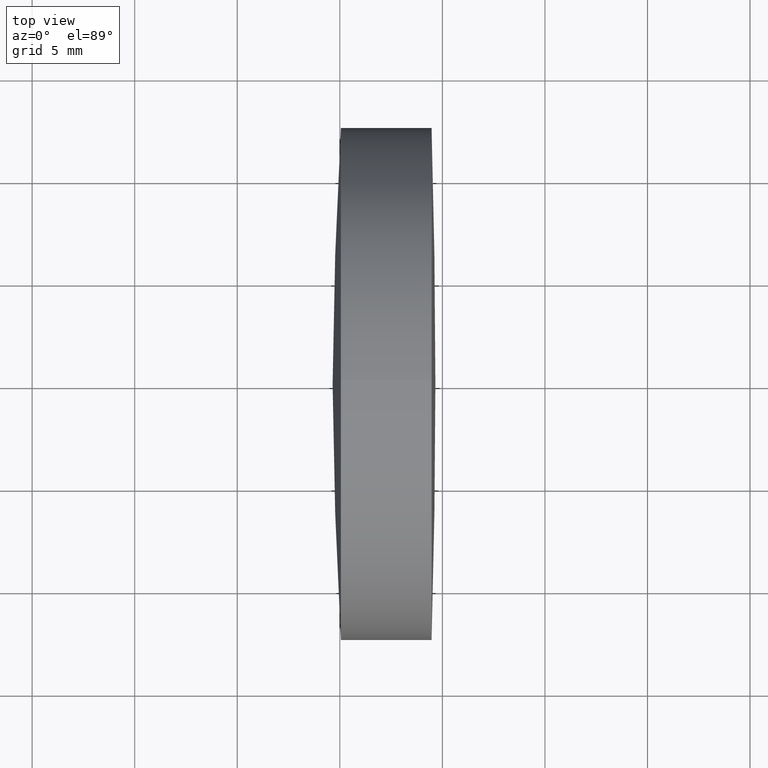
[diagram: clean part render]
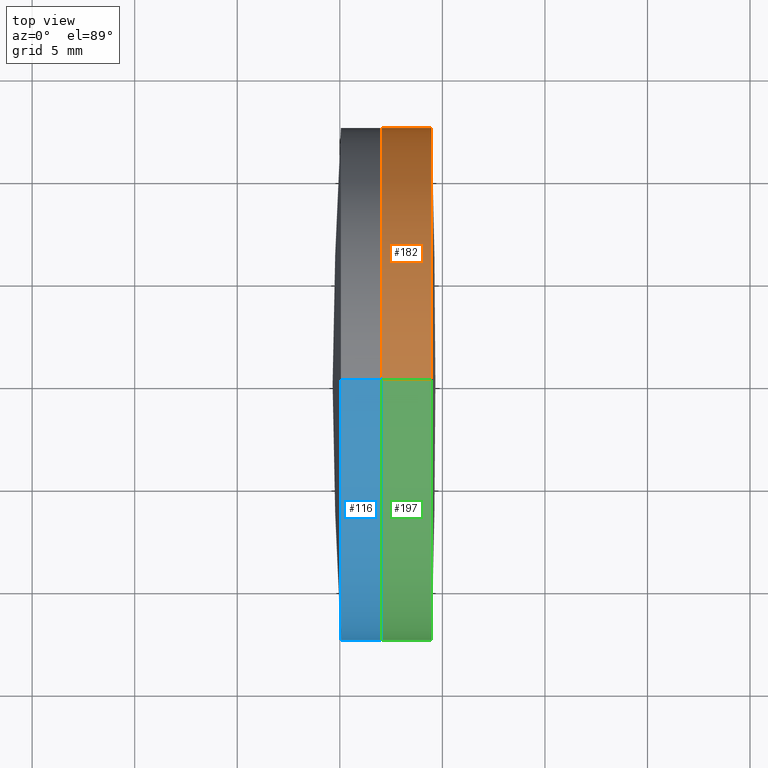
[diagram: same view with three faces highlighted in distinct colors, each labeled with its STEP entity id]
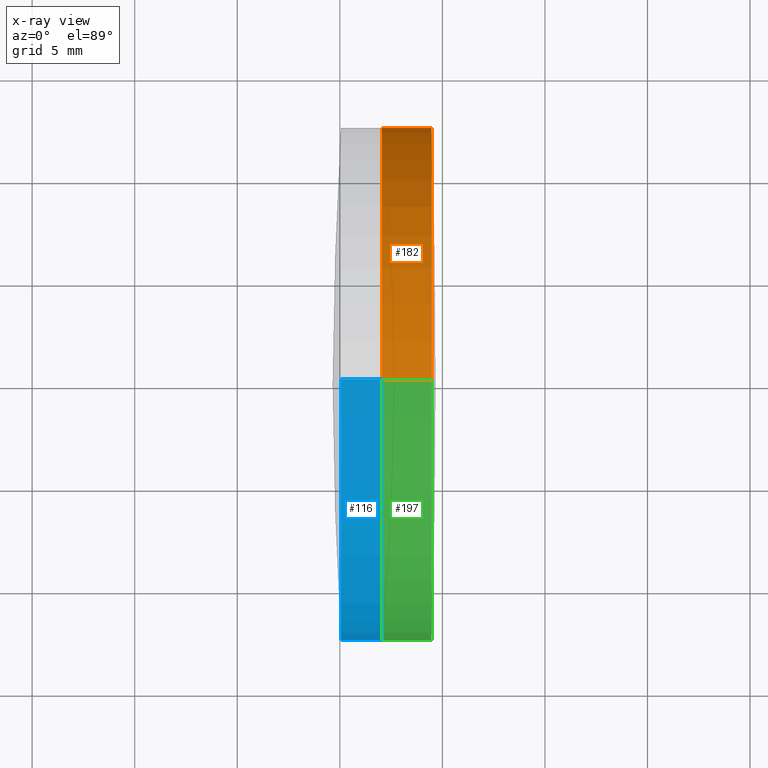
[diagram: x-ray of the same camera — body ghosted, the three highlighted faces saturated]
A machine part, top view with three faces highlighted in distinct colors.
The next image is the same camera in x-ray (body ghosted, the three faces saturated) — at least one of them is partly hidden behind the body in this view.
Their STEP definitions:

[orange] entity #182 — the highlighted cylindrical surface (partial cylindrical patch) has radius 12.5 mm, axis along (-1, -0, -0).
#8 = DIRECTION ( 'NONE',  ( 0.0000000000000000000, 0.0000000000000000000, 1.000000000000000000 ) ) ;
#23 = DIRECTION ( 'NONE',  ( 0.0000000000000000000, 0.0000000000000000000, 1.000000000000000000 ) ) ;
#28 = ORIENTED_EDGE ( 'NONE', *, *, #59, .T. ) ;
#34 = FACE_OUTER_BOUND ( 'NONE', #267, .T. ) ;
#40 = EDGE_CURVE ( 'NONE', #330, #192, #142, .T. ) ;
#50 = EDGE_CURVE ( 'NONE', #192, #261, #275, .T. ) ;
#59 = EDGE_CURVE ( 'NONE', #83, #261, #346, .T. ) ;
#68 = DIRECTION ( 'NONE',  ( -1.000000000000000000, -0.0000000000000000000, -0.0000000000000000000 ) ) ;
#76 = CARTESIAN_POINT ( 'NONE',  ( 144.4738592895435300, 1.530808498934196100E-015, -12.50000000000002000 ) ) ;
#83 = VERTEX_POINT ( 'NONE', #76 ) ;
#85 = AXIS2_PLACEMENT_3D ( 'NONE', #215, #271, #8 ) ;
#89 = DIRECTION ( 'NONE',  ( -1.000000000000000000, -0.0000000000000000000, -0.0000000000000000000 ) ) ;
#133 = DIRECTION ( 'NONE',  ( -1.000000000000000000, -0.0000000000000000000, -0.0000000000000000000 ) ) ;
#142 = LINE ( 'NONE', #217, #322 ) ;
#151 = CYLINDRICAL_SURFACE ( 'NONE', #85, 12.50000000000005700 ) ;
#172 = AXIS2_PLACEMENT_3D ( 'NONE', #280, #89, #258 ) ;
#182 = ADVANCED_FACE ( 'NONE', ( #34 ), #151, .T. ) ;
#183 = DIRECTION ( 'NONE',  ( -1.000000000000000000, -0.0000000000000000000, -0.0000000000000000000 ) ) ;
#185 = CARTESIAN_POINT ( 'NONE',  ( 142.0467968014847300, 1.530808498934205900E-015, -12.50000000000011900 ) ) ;
#192 = VERTEX_POINT ( 'NONE', #309 ) ;
#215 = CARTESIAN_POINT ( 'NONE',  ( -0.5519199926577972300, 0.0000000000000000000, 0.0000000000000000000 ) ) ;
#217 = CARTESIAN_POINT ( 'NONE',  ( -0.5519199926577972300, 0.0000000000000000000, 12.50000000000005700 ) ) ;
#230 = CARTESIAN_POINT ( 'NONE',  ( -0.5519199926577972300, 1.530808498934198400E-015, -12.50000000000005700 ) ) ;
#233 = CIRCLE ( 'NONE', #172, 12.50000000000002000 ) ;
#237 = ORIENTED_EDGE ( 'NONE', *, *, #314, .T. ) ;
#252 = CARTESIAN_POINT ( 'NONE',  ( 144.4738592895435300, 0.0000000000000000000, 12.50000000000002000 ) ) ;
#258 = DIRECTION ( 'NONE',  ( 0.0000000000000000000, 0.0000000000000000000, 1.000000000000000000 ) ) ;
#261 = VERTEX_POINT ( 'NONE', #185 ) ;
#267 = EDGE_LOOP ( 'NONE', ( #237, #28, #292, #337 ) ) ;
#271 = DIRECTION ( 'NONE',  ( -1.000000000000000000, -0.0000000000000000000, -0.0000000000000000000 ) ) ;
#272 = VECTOR ( 'NONE', #133, 1000.000000000000000 ) ;
#275 = CIRCLE ( 'NONE', #327, 12.50000000000009100 ) ;
#280 = CARTESIAN_POINT ( 'NONE',  ( 144.4738592895435300, 0.0000000000000000000, 0.0000000000000000000 ) ) ;
#287 = CARTESIAN_POINT ( 'NONE',  ( 142.0467968014847300, 0.0000000000000000000, 0.0000000000000000000 ) ) ;
#292 = ORIENTED_EDGE ( 'NONE', *, *, #50, .F. ) ;
#309 = CARTESIAN_POINT ( 'NONE',  ( 142.0467968014847300, 0.0000000000000000000, 12.50000000000011900 ) ) ;
#314 = EDGE_CURVE ( 'NONE', #330, #83, #233, .T. ) ;
#322 = VECTOR ( 'NONE', #68, 1000.000000000000000 ) ;
#327 = AXIS2_PLACEMENT_3D ( 'NONE', #287, #183, #23 ) ;
#330 = VERTEX_POINT ( 'NONE', #252 ) ;
#337 = ORIENTED_EDGE ( 'NONE', *, *, #40, .F. ) ;
#346 = LINE ( 'NONE', #230, #272 ) ;

[blue] entity #116 — the highlighted cylindrical surface (partial cylindrical patch) has radius 12.5 mm, axis along (-1, -0, -0).
#6 = CYLINDRICAL_SURFACE ( 'NONE', #232, 12.50000000000000000 ) ;
#13 = CARTESIAN_POINT ( 'NONE',  ( 142.0467968014847300, 0.0000000000000000000, 0.0000000000000000000 ) ) ;
#31 = CARTESIAN_POINT ( 'NONE',  ( 142.0467968014847300, 1.530808498934191500E-015, -12.50000000000000000 ) ) ;
#35 = ORIENTED_EDGE ( 'NONE', *, *, #231, .F. ) ;
#39 = CARTESIAN_POINT ( 'NONE',  ( -9.702612178336682500, 0.0000000000000000000, 0.0000000000000000000 ) ) ;
#60 = AXIS2_PLACEMENT_3D ( 'NONE', #97, #79, #128 ) ;
#66 = EDGE_CURVE ( 'NONE', #244, #200, #161, .T. ) ;
#77 = AXIS2_PLACEMENT_3D ( 'NONE', #13, #189, #100 ) ;
#79 = DIRECTION ( 'NONE',  ( -1.000000000000000000, -0.0000000000000000000, -0.0000000000000000000 ) ) ;
#82 = VECTOR ( 'NONE', #334, 1000.000000000000000 ) ;
#94 = DIRECTION ( 'NONE',  ( 0.0000000000000000000, 0.0000000000000000000, 1.000000000000000000 ) ) ;
#97 = CARTESIAN_POINT ( 'NONE',  ( 140.0534823293508600, 0.0000000000000000000, 0.0000000000000000000 ) ) ;
#100 = DIRECTION ( 'NONE',  ( 0.0000000000000000000, 0.0000000000000000000, 1.000000000000000000 ) ) ;
#101 = LINE ( 'NONE', #205, #82 ) ;
#116 = ADVANCED_FACE ( 'NONE', ( #266 ), #6, .T. ) ;
#128 = DIRECTION ( 'NONE',  ( 0.0000000000000000000, 0.0000000000000000000, 1.000000000000000000 ) ) ;
#156 = CARTESIAN_POINT ( 'NONE',  ( 142.0467968014847300, 0.0000000000000000000, 12.50000000000000000 ) ) ;
#161 = CIRCLE ( 'NONE', #60, 12.50000000000000000 ) ;
#175 = EDGE_CURVE ( 'NONE', #312, #200, #101, .T. ) ;
#180 = VERTEX_POINT ( 'NONE', #31 ) ;
#189 = DIRECTION ( 'NONE',  ( -1.000000000000000000, -0.0000000000000000000, -0.0000000000000000000 ) ) ;
#199 = CARTESIAN_POINT ( 'NONE',  ( -9.702612178336682500, 1.530808498934191500E-015, -12.50000000000000000 ) ) ;
#200 = VERTEX_POINT ( 'NONE', #203 ) ;
#201 = DIRECTION ( 'NONE',  ( -1.000000000000000000, -0.0000000000000000000, -0.0000000000000000000 ) ) ;
#203 = CARTESIAN_POINT ( 'NONE',  ( 140.0534823293508600, 0.0000000000000000000, 12.50000000000007300 ) ) ;
#205 = CARTESIAN_POINT ( 'NONE',  ( -9.702612178336682500, 0.0000000000000000000, 12.50000000000000000 ) ) ;
#219 = ORIENTED_EDGE ( 'NONE', *, *, #66, .F. ) ;
#220 = DIRECTION ( 'NONE',  ( -1.000000000000000000, -0.0000000000000000000, -0.0000000000000000000 ) ) ;
#231 = EDGE_CURVE ( 'NONE', #180, #244, #344, .T. ) ;
#232 = AXIS2_PLACEMENT_3D ( 'NONE', #39, #201, #94 ) ;
#242 = CIRCLE ( 'NONE', #77, 12.50000000000000000 ) ;
#244 = VERTEX_POINT ( 'NONE', #265 ) ;
#265 = CARTESIAN_POINT ( 'NONE',  ( 140.0534823293508600, 1.530808498934200400E-015, -12.50000000000007300 ) ) ;
#266 = FACE_OUTER_BOUND ( 'NONE', #268, .T. ) ;
#268 = EDGE_LOOP ( 'NONE', ( #35, #276, #273, #219 ) ) ;
#273 = ORIENTED_EDGE ( 'NONE', *, *, #175, .T. ) ;
#276 = ORIENTED_EDGE ( 'NONE', *, *, #301, .T. ) ;
#301 = EDGE_CURVE ( 'NONE', #180, #312, #242, .T. ) ;
#312 = VERTEX_POINT ( 'NONE', #156 ) ;
#334 = DIRECTION ( 'NONE',  ( -1.000000000000000000, -0.0000000000000000000, -0.0000000000000000000 ) ) ;
#343 = VECTOR ( 'NONE', #220, 1000.000000000000000 ) ;
#344 = LINE ( 'NONE', #199, #343 ) ;

[green] entity #197 — the highlighted cylindrical surface (partial cylindrical patch) has radius 12.5 mm, axis along (-1, -0, -0).
#4 = ORIENTED_EDGE ( 'NONE', *, *, #59, .F. ) ;
#18 = EDGE_LOOP ( 'NONE', ( #4, #299, #42, #206 ) ) ;
#24 = AXIS2_PLACEMENT_3D ( 'NONE', #320, #141, #122 ) ;
#40 = EDGE_CURVE ( 'NONE', #330, #192, #142, .T. ) ;
#42 = ORIENTED_EDGE ( 'NONE', *, *, #40, .T. ) ;
#59 = EDGE_CURVE ( 'NONE', #83, #261, #346, .T. ) ;
#68 = DIRECTION ( 'NONE',  ( -1.000000000000000000, -0.0000000000000000000, -0.0000000000000000000 ) ) ;
#76 = CARTESIAN_POINT ( 'NONE',  ( 144.4738592895435300, 1.530808498934196100E-015, -12.50000000000002000 ) ) ;
#83 = VERTEX_POINT ( 'NONE', #76 ) ;
#84 = AXIS2_PLACEMENT_3D ( 'NONE', #221, #333, #310 ) ;
#90 = EDGE_CURVE ( 'NONE', #261, #192, #329, .T. ) ;
#96 = DIRECTION ( 'NONE',  ( 0.0000000000000000000, 0.0000000000000000000, 1.000000000000000000 ) ) ;
#108 = EDGE_CURVE ( 'NONE', #83, #330, #294, .T. ) ;
#122 = DIRECTION ( 'NONE',  ( 0.0000000000000000000, 0.0000000000000000000, 1.000000000000000000 ) ) ;
#133 = DIRECTION ( 'NONE',  ( -1.000000000000000000, -0.0000000000000000000, -0.0000000000000000000 ) ) ;
#141 = DIRECTION ( 'NONE',  ( -1.000000000000000000, -0.0000000000000000000, -0.0000000000000000000 ) ) ;
#142 = LINE ( 'NONE', #217, #322 ) ;
#185 = CARTESIAN_POINT ( 'NONE',  ( 142.0467968014847300, 1.530808498934205900E-015, -12.50000000000011900 ) ) ;
#191 = FACE_OUTER_BOUND ( 'NONE', #18, .T. ) ;
#192 = VERTEX_POINT ( 'NONE', #309 ) ;
#197 = ADVANCED_FACE ( 'NONE', ( #191 ), #284, .T. ) ;
#206 = ORIENTED_EDGE ( 'NONE', *, *, #90, .F. ) ;
#217 = CARTESIAN_POINT ( 'NONE',  ( -0.5519199926577972300, 0.0000000000000000000, 12.50000000000005700 ) ) ;
#221 = CARTESIAN_POINT ( 'NONE',  ( -0.5519199926577972300, 0.0000000000000000000, 0.0000000000000000000 ) ) ;
#230 = CARTESIAN_POINT ( 'NONE',  ( -0.5519199926577972300, 1.530808498934198400E-015, -12.50000000000005700 ) ) ;
#245 = CARTESIAN_POINT ( 'NONE',  ( 142.0467968014847300, 0.0000000000000000000, 0.0000000000000000000 ) ) ;
#252 = CARTESIAN_POINT ( 'NONE',  ( 144.4738592895435300, 0.0000000000000000000, 12.50000000000002000 ) ) ;
#257 = AXIS2_PLACEMENT_3D ( 'NONE', #245, #296, #96 ) ;
#261 = VERTEX_POINT ( 'NONE', #185 ) ;
#272 = VECTOR ( 'NONE', #133, 1000.000000000000000 ) ;
#284 = CYLINDRICAL_SURFACE ( 'NONE', #84, 12.50000000000005700 ) ;
#294 = CIRCLE ( 'NONE', #24, 12.50000000000002000 ) ;
#296 = DIRECTION ( 'NONE',  ( -1.000000000000000000, -0.0000000000000000000, -0.0000000000000000000 ) ) ;
#299 = ORIENTED_EDGE ( 'NONE', *, *, #108, .T. ) ;
#309 = CARTESIAN_POINT ( 'NONE',  ( 142.0467968014847300, 0.0000000000000000000, 12.50000000000011900 ) ) ;
#310 = DIRECTION ( 'NONE',  ( 0.0000000000000000000, 0.0000000000000000000, 1.000000000000000000 ) ) ;
#320 = CARTESIAN_POINT ( 'NONE',  ( 144.4738592895435300, 0.0000000000000000000, 0.0000000000000000000 ) ) ;
#322 = VECTOR ( 'NONE', #68, 1000.000000000000000 ) ;
#329 = CIRCLE ( 'NONE', #257, 12.50000000000009100 ) ;
#330 = VERTEX_POINT ( 'NONE', #252 ) ;
#333 = DIRECTION ( 'NONE',  ( -1.000000000000000000, -0.0000000000000000000, -0.0000000000000000000 ) ) ;
#346 = LINE ( 'NONE', #230, #272 ) ;